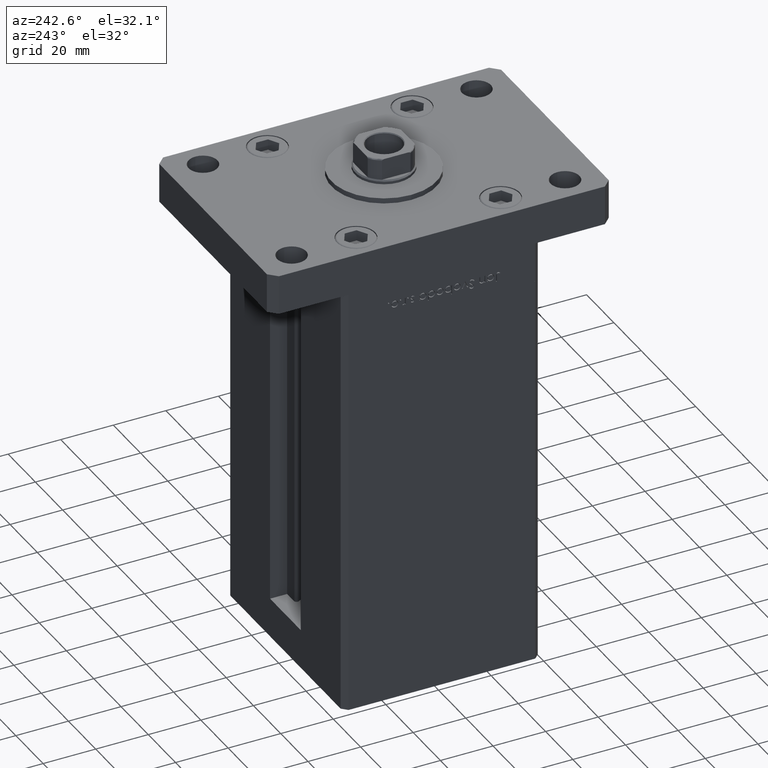
[diagram: clean part render]
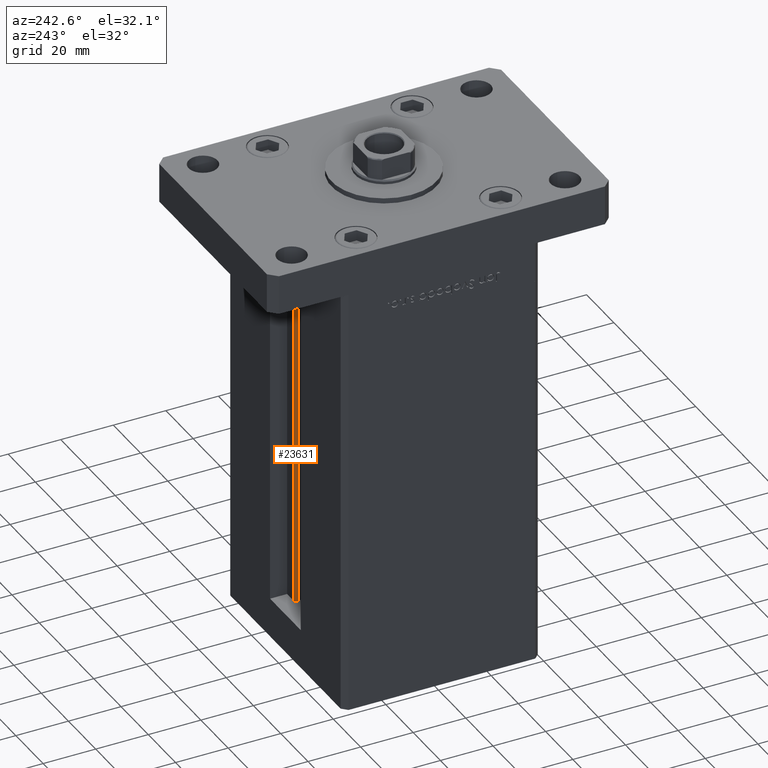
[diagram: same view with one face highlighted and labeled with its STEP entity id]
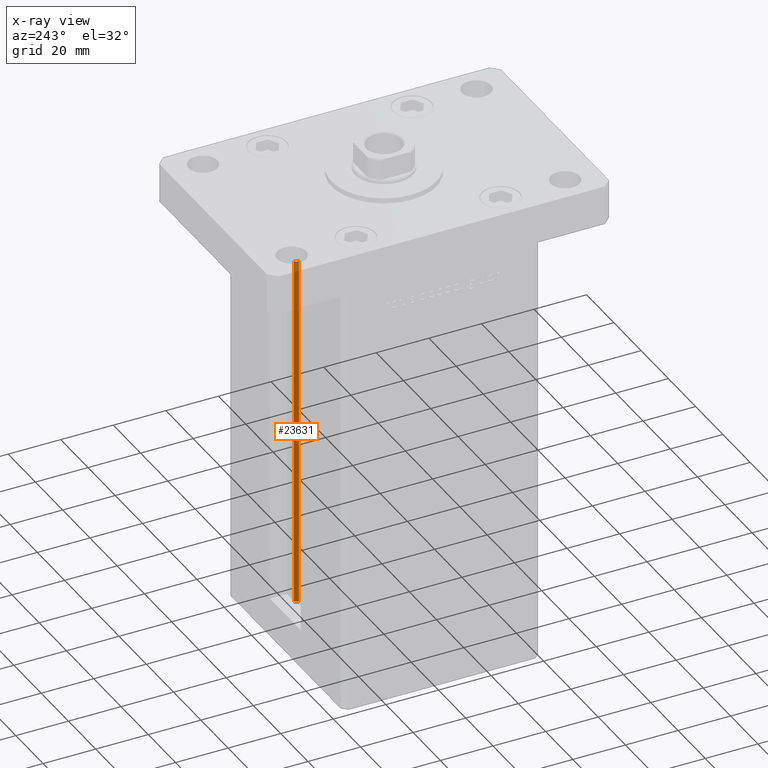
[diagram: x-ray of the same camera — body ghosted, the highlighted face saturated]
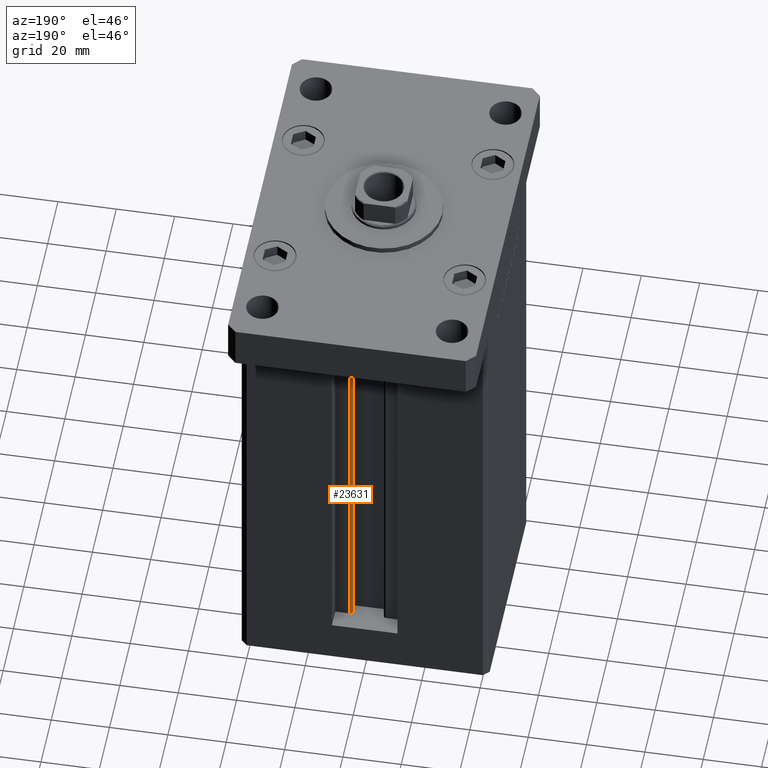
[diagram: same view with one face highlighted and labeled with its STEP entity id]
A machine part, auxiliary view. The second image highlights one B-rep face of the part: STEP entity #23631.
The next image is the same camera in x-ray: the body ghosted, the highlighted face saturated — about 14% of this face is hidden behind the body in this view.
A second angle (auxiliary view) of the same face is appended — the face is thin or edge-on in the first view.
In plain terms, the highlighted cylindrical surface (edge-blend (fillet) strip) has radius 0.9333 mm, axis along (0, 0, 1).
Its self-contained STEP definition (entity closure, byte-faithful):
#911 = LINE ( 'NONE', #20952, #20429 ) ;
#2176 = CIRCLE ( 'NONE', #17752, 0.9333333333340015914 ) ;
#2248 = DIRECTION ( 'NONE',  ( 1.000000000000000000, 0.000000000000000000, 0.000000000000000000 ) ) ;
#4470 = CARTESIAN_POINT ( 'NONE',  ( 5.375042956467943611, 29.59999999999899245, 0.000000000000000000 ) ) ;
#5437 = ORIENTED_EDGE ( 'NONE', *, *, #32804, .F. ) ;
#8722 = CARTESIAN_POINT ( 'NONE',  ( 6.183333333333999704, 30.99999999999999289, 135.5000000000000000 ) ) ;
#9681 = DIRECTION ( 'NONE',  ( -0.000000000000000000, -0.000000000000000000, 1.000000000000000000 ) ) ;
#14766 = ORIENTED_EDGE ( 'NONE', *, *, #30213, .T. ) ;
#15316 = VERTEX_POINT ( 'NONE', #25601 ) ;
#17442 = DIRECTION ( 'NONE',  ( -0.000000000000000000, -0.000000000000000000, 1.000000000000000000 ) ) ;
#17752 = AXIS2_PLACEMENT_3D ( 'NONE', #27702, #35076, #2248 ) ;
#18369 = CARTESIAN_POINT ( 'NONE',  ( 6.183333333333999704, 30.06666666666599141, 0.000000000000000000 ) ) ;
#20429 = VECTOR ( 'NONE', #17442, 1000.000000000000000 ) ;
#20580 = VECTOR ( 'NONE', #20994, 1000.000000000000000 ) ;
#20952 = CARTESIAN_POINT ( 'NONE',  ( 6.183333333333999704, 30.99999999999999289, 0.000000000000000000 ) ) ;
#20994 = DIRECTION ( 'NONE',  ( -0.000000000000000000, -0.000000000000000000, 1.000000000000000000 ) ) ;
#22330 = ORIENTED_EDGE ( 'NONE', *, *, #37383, .T. ) ;
#22935 = EDGE_LOOP ( 'NONE', ( #5437, #28620, #22330, #14766 ) ) ;
#23094 = DIRECTION ( 'NONE',  ( 1.000000000000000000, 0.000000000000000000, 0.000000000000000000 ) ) ;
#23631 = ADVANCED_FACE ( 'NONE', ( #26760 ), #51219, .T. ) ;
#25601 = CARTESIAN_POINT ( 'NONE',  ( 5.375042956467944499, 29.59999999999898890, 135.5000000000000000 ) ) ;
#26760 = FACE_OUTER_BOUND ( 'NONE', #22935, .T. ) ;
#26929 = CARTESIAN_POINT ( 'NONE',  ( 5.375042956467943611, 29.59999999999899245, 0.000000000000000000 ) ) ;
#27437 = DIRECTION ( 'NONE',  ( 0.000000000000000000, 0.000000000000000000, -1.000000000000000000 ) ) ;
#27702 = CARTESIAN_POINT ( 'NONE',  ( 6.183333333333999704, 30.06666666666599141, 0.000000000000000000 ) ) ;
#28620 = ORIENTED_EDGE ( 'NONE', *, *, #29462, .F. ) ;
#29462 = EDGE_CURVE ( 'NONE', #36426, #42055, #2176, .T. ) ;
#30213 = EDGE_CURVE ( 'NONE', #15316, #42776, #36873, .T. ) ;
#31267 = CARTESIAN_POINT ( 'NONE',  ( 6.183333333333999704, 30.06666666666599141, 135.5000000000000000 ) ) ;
#32804 = EDGE_CURVE ( 'NONE', #42055, #42776, #911, .T. ) ;
#35076 = DIRECTION ( 'NONE',  ( -0.000000000000000000, -0.000000000000000000, -1.000000000000000000 ) ) ;
#36426 = VERTEX_POINT ( 'NONE', #26929 ) ;
#36873 = CIRCLE ( 'NONE', #52440, 0.9333333333340015914 ) ;
#37383 = EDGE_CURVE ( 'NONE', #36426, #15316, #50319, .T. ) ;
#41363 = CARTESIAN_POINT ( 'NONE',  ( 6.183333333333999704, 30.99999999999999289, 0.000000000000000000 ) ) ;
#42055 = VERTEX_POINT ( 'NONE', #41363 ) ;
#42548 = DIRECTION ( 'NONE',  ( 1.000000000000000000, 0.000000000000000000, 0.000000000000000000 ) ) ;
#42776 = VERTEX_POINT ( 'NONE', #8722 ) ;
#48908 = AXIS2_PLACEMENT_3D ( 'NONE', #18369, #9681, #42548 ) ;
#50319 = LINE ( 'NONE', #4470, #20580 ) ;
#51219 = CYLINDRICAL_SURFACE ( 'NONE', #48908, 0.9333333333340015914 ) ;
#52440 = AXIS2_PLACEMENT_3D ( 'NONE', #31267, #27437, #23094 ) ;